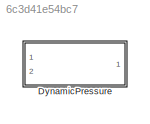
MODEL slx_6c3d41e54bc7
KIND library
CONFIG AbsTol = auto
CONFIG EnableMultiTasking = off
CONFIG FixedStep = auto
CONFIG MaxStep = auto
CONFIG MinStep = auto
CONFIG RelTol = 1e-3
CONFIG SampleTimeConstraint = Unconstrained
CONFIG Solver = VariableStepAuto
CONFIG SolverName = VariableStepAuto
CONFIG StartTime = 0.0
CONFIG StopTime = 10.0
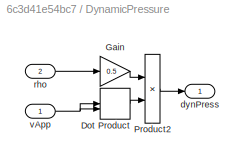
BLOCK [SubSystem] DynamicPressure
  Ports = [2, 1]
  RequestExecContextInheritance = off
BLOCK [DotProduct] DynamicPressure/Dot Product
  OutDataTypeStr = Inherit: Inherit via internal rule
BLOCK [Gain] DynamicPressure/Gain
  Gain = 0.5
BLOCK [Product] DynamicPressure/Product2
  Ports = [2, 1]
BLOCK [Outport] DynamicPressure/dynPress
  VectorParamsAs1DForOutWhenUnconnected = off
BLOCK [Inport] DynamicPressure/rho
  Port = 2
BLOCK [Inport] DynamicPressure/vApp
LINE DynamicPressure/Dot Product:1 -> DynamicPressure/Product2:2
LINE DynamicPressure/Gain:1 -> DynamicPressure/Product2:1
LINE DynamicPressure/Product2:1 -> DynamicPressure/dynPress:1
LINE DynamicPressure/rho:1 -> DynamicPressure/Gain:1
NET DynamicPressure/vApp:1 -> DynamicPressure/Dot Product:1, DynamicPressure/Dot Product:2
note: NET lines group one-source signal fan-out (src -> all destinations, sorted); 1:1 wires keep LINE
